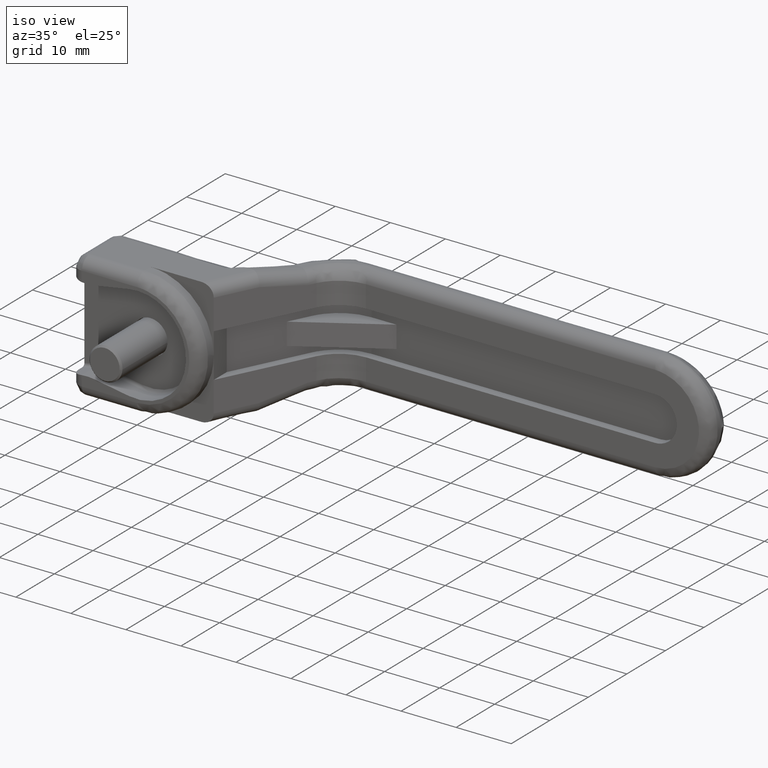
[diagram: clean part render]
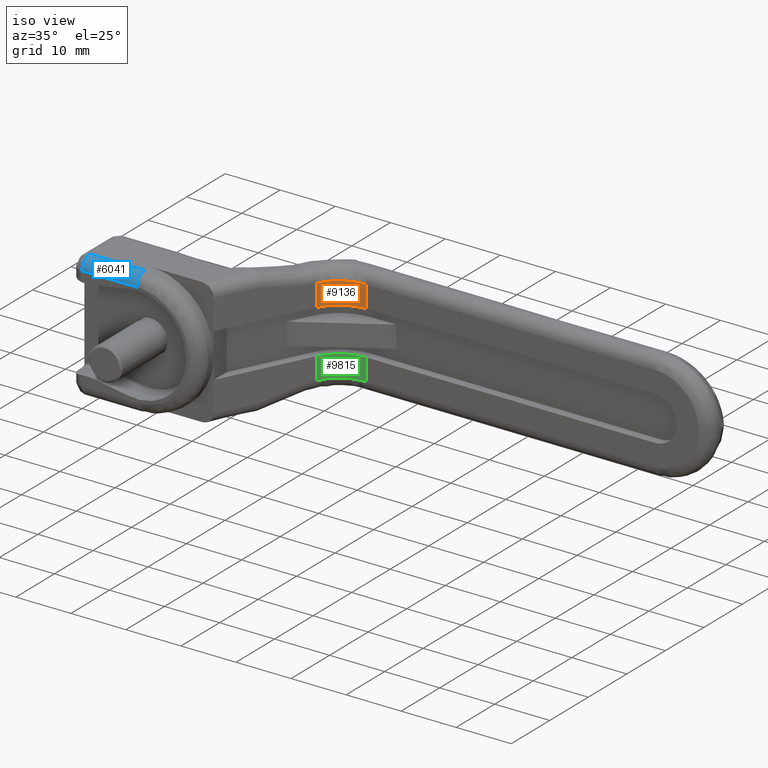
[diagram: same view with three faces highlighted in distinct colors, each labeled with its STEP entity id]
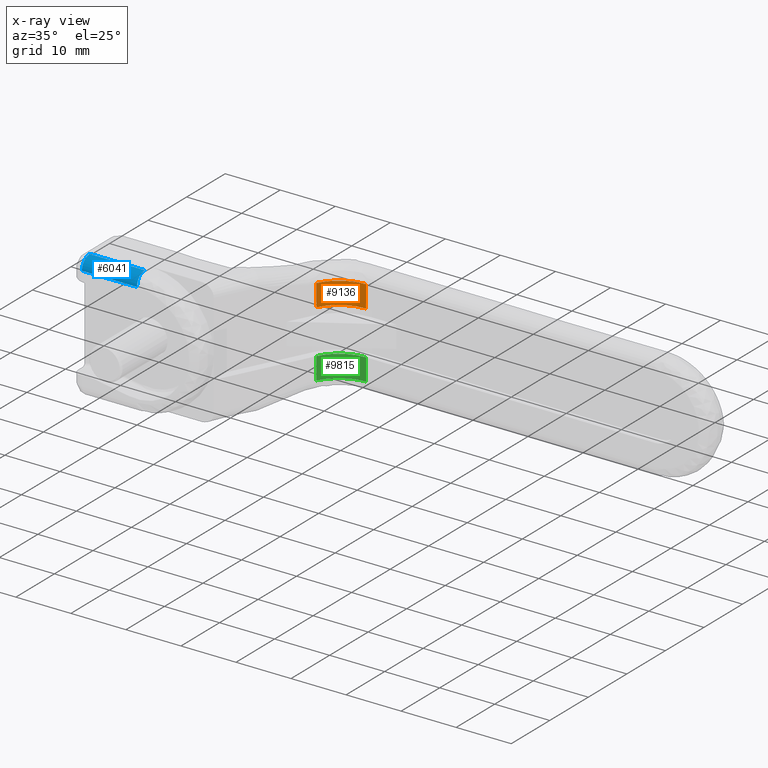
[diagram: x-ray of the same camera — body ghosted, the three highlighted faces saturated]
A machine part, iso view with three faces highlighted in distinct colors.
The next image is the same camera in x-ray (body ghosted, the three faces saturated) — at least one of them is partly hidden behind the body in this view.
Their STEP definitions:

[orange] entity #9136 — the highlighted face is a freeform B-spline surface patch.
#6401=CARTESIAN_POINT('',(19.105975049382799,-19.226759969643400,8.000000738483390));
#6402=VERTEX_POINT('',#6401);
#6542=CARTESIAN_POINT('',(23.000001089999699,-25.499951004805151,8.000000738483390));
#6543=VERTEX_POINT('',#6542);
#6573=CARTESIAN_POINT('',(23.000001089999699,-25.499951004805151,8.000000738483390));
#6574=CARTESIAN_POINT('',(23.000001089999706,-21.154764937374104,8.000000738483390));
#6575=CARTESIAN_POINT('',(19.105975049382810,-19.226759969643378,8.000000738483390));
#6583=(BOUNDED_CURVE()B_SPLINE_CURVE(2,(#6573,#6574,#6575),.UNSPECIFIED.,.F.,.U.)CURVE()GEOMETRIC_REPRESENTATION_ITEM()QUASI_UNIFORM_CURVE()RATIONAL_B_SPLINE_CURVE((1.0,0.849620669953997,1.0))REPRESENTATION_ITEM(''));
#6584=EDGE_CURVE('',#6543,#6402,#6583,.T.);
#8862=CARTESIAN_POINT('',(23.000001089999699,-25.499951214155899,4.000000453498800));
#8863=VERTEX_POINT('',#8862);
#8869=CARTESIAN_POINT('',(19.105974864426500,-19.226759878062751,4.000000453498800));
#8870=VERTEX_POINT('',#8869);
#8871=CARTESIAN_POINT('',(23.000001089999660,-25.499951214155899,4.000000453498800));
#8872=CARTESIAN_POINT('',(23.000001091843824,-21.154764938281826,4.000000453498800));
#8873=CARTESIAN_POINT('',(19.105974864426511,-19.226759878062730,4.000000453498800));
#8881=(BOUNDED_CURVE()B_SPLINE_CURVE(2,(#8871,#8872,#8873),.UNSPECIFIED.,.F.,.U.)CURVE()GEOMETRIC_REPRESENTATION_ITEM()QUASI_UNIFORM_CURVE()RATIONAL_B_SPLINE_CURVE((1.0,0.849620669842080,1.0))REPRESENTATION_ITEM(''));
#8882=EDGE_CURVE('',#8863,#8870,#8881,.T.);
#9108=CARTESIAN_POINT('',(22.996388396259199,-25.724816877740469,8.100000745608005));
#9109=CARTESIAN_POINT('',(22.996388396259199,-25.724816877740469,3.897500446196070));
#9110=CARTESIAN_POINT('',(23.149540840633261,-20.959692656114022,8.100000745608005));
#9111=CARTESIAN_POINT('',(23.149540840633261,-20.959692656114022,3.897500446196071));
#9112=CARTESIAN_POINT('',(18.771580031312730,-19.072015864181058,8.100000745608007));
#9113=CARTESIAN_POINT('',(18.771580031312730,-19.072015864181058,3.897500446196070));
#9121=(BOUNDED_SURFACE()B_SPLINE_SURFACE(1,2,((#9108,#9110,#9112),(#9109,#9111,#9113)),.UNSPECIFIED.,.F.,.F.,.U.)B_SPLINE_SURFACE_WITH_KNOTS((2,2),(3,3),(0.0,4.202500299411936),(0.0,8.629438486443375),.UNSPECIFIED.)GEOMETRIC_REPRESENTATION_ITEM()RATIONAL_B_SPLINE_SURFACE(((1.0,0.823218167194629,0.992050596791715),(1.0,0.823218167194629,0.992050596791715)))REPRESENTATION_ITEM('')SURFACE());
#9122=CARTESIAN_POINT('',(23.000001089999699,-25.499951004805151,8.000000738483390));
#9123=CARTESIAN_POINT('',(23.000001089999699,-25.499951214155899,4.000000453498800));
#9124=QUASI_UNIFORM_CURVE('',1,(#9122,#9123),.UNSPECIFIED.,.F.,.U.);
#9125=EDGE_CURVE('',#6543,#8863,#9124,.T.);
#9126=ORIENTED_EDGE('',*,*,#9125,.F.);
#9127=ORIENTED_EDGE('',*,*,#6584,.T.);
#9128=CARTESIAN_POINT('',(19.105974864426500,-19.226759878062751,4.000000453498800));
#9129=CARTESIAN_POINT('',(19.105975049382799,-19.226759969643400,8.000000738483390));
#9130=QUASI_UNIFORM_CURVE('',1,(#9128,#9129),.UNSPECIFIED.,.F.,.U.);
#9131=EDGE_CURVE('',#8870,#6402,#9130,.T.);
#9132=ORIENTED_EDGE('',*,*,#9131,.F.);
#9133=ORIENTED_EDGE('',*,*,#8882,.F.);
#9134=EDGE_LOOP('',(#9126,#9127,#9132,#9133));
#9135=FACE_OUTER_BOUND('',#9134,.T.);
#9136=ADVANCED_FACE('',(#9135),#9121,.F.);

[blue] entity #6041 — the highlighted face is a freeform B-spline surface patch.
#5981=CARTESIAN_POINT('',(0.001903556836285,10.250000000000000,9.412762034999028));
#5982=CARTESIAN_POINT('',(0.001903556836285,-0.256250000000000,9.412762034999028));
#5983=CARTESIAN_POINT('',(-0.095868981527806,10.250000000000000,11.652121330765164));
#5984=CARTESIAN_POINT('',(-0.095868981527806,-0.256250000000000,11.652121330765164));
#5985=CARTESIAN_POINT('',(2.140116177109670,10.250000000000004,11.495086636683560));
#5986=CARTESIAN_POINT('',(2.140116177109670,-0.256250000000000,11.495086636683560));
#5994=(BOUNDED_SURFACE()B_SPLINE_SURFACE(1,2,((#5981,#5983,#5985),(#5982,#5984,#5986)),.UNSPECIFIED.,.F.,.F.,.U.)B_SPLINE_SURFACE_WITH_KNOTS((2,2),(3,3),(0.0,10.506250000000000),(0.0,3.583485071282827),.UNSPECIFIED.)GEOMETRIC_REPRESENTATION_ITEM()RATIONAL_B_SPLINE_SURFACE(((1.0,0.664513899319860,0.996233559707205),(1.0,0.664513899319860,0.996233559707205)))REPRESENTATION_ITEM('')SURFACE());
#5995=CARTESIAN_POINT('',(0.0,0.0,9.500000809729690));
#5996=VERTEX_POINT('',#5995);
#5997=CARTESIAN_POINT('',(2.0,0.0,11.500000809729700));
#5998=VERTEX_POINT('',#5997);
#5999=CARTESIAN_POINT('',(0.0,0.0,9.500000809729690));
#6000=CARTESIAN_POINT('',(0.0,0.0,11.500000809729690));
#6001=CARTESIAN_POINT('',(2.0,0.0,11.500000809729690));
#6009=(BOUNDED_CURVE()B_SPLINE_CURVE(2,(#5999,#6000,#6001),.UNSPECIFIED.,.F.,.U.)CURVE()GEOMETRIC_REPRESENTATION_ITEM()QUASI_UNIFORM_CURVE()RATIONAL_B_SPLINE_CURVE((1.0,0.707106781186548,1.0))REPRESENTATION_ITEM(''));
#6010=EDGE_CURVE('',#5996,#5998,#6009,.T.);
#6011=ORIENTED_EDGE('',*,*,#6010,.T.);
#6012=CARTESIAN_POINT('',(2.0,10.0,11.500000809729700));
#6013=VERTEX_POINT('',#6012);
#6014=CARTESIAN_POINT('',(2.0,10.0,11.500000809729700));
#6015=CARTESIAN_POINT('',(2.0,0.0,11.500000809729700));
#6016=QUASI_UNIFORM_CURVE('',1,(#6014,#6015),.UNSPECIFIED.,.F.,.U.);
#6017=EDGE_CURVE('',#6013,#5998,#6016,.T.);
#6018=ORIENTED_EDGE('',*,*,#6017,.F.);
#6019=CARTESIAN_POINT('',(0.0,10.0,9.500000809729700));
#6020=VERTEX_POINT('',#6019);
#6021=CARTESIAN_POINT('',(2.0,10.0,11.500000809729700));
#6022=CARTESIAN_POINT('',(0.0,10.000000000000002,11.500000809729700));
#6023=CARTESIAN_POINT('',(0.0,10.0,9.500000809729700));
#6031=(BOUNDED_CURVE()B_SPLINE_CURVE(2,(#6021,#6022,#6023),.UNSPECIFIED.,.F.,.U.)CURVE()GEOMETRIC_REPRESENTATION_ITEM()QUASI_UNIFORM_CURVE()RATIONAL_B_SPLINE_CURVE((1.0,0.707106781186548,1.0))REPRESENTATION_ITEM(''));
#6032=EDGE_CURVE('',#6013,#6020,#6031,.T.);
#6033=ORIENTED_EDGE('',*,*,#6032,.T.);
#6034=CARTESIAN_POINT('',(0.0,0.0,9.500000809729690));
#6035=CARTESIAN_POINT('',(0.0,10.0,9.500000809729700));
#6036=QUASI_UNIFORM_CURVE('',1,(#6034,#6035),.UNSPECIFIED.,.F.,.U.);
#6037=EDGE_CURVE('',#5996,#6020,#6036,.T.);
#6038=ORIENTED_EDGE('',*,*,#6037,.F.);
#6039=EDGE_LOOP('',(#6011,#6018,#6033,#6038));
#6040=FACE_OUTER_BOUND('',#6039,.T.);
#6041=ADVANCED_FACE('',(#6040),#5994,.T.);

[green] entity #9815 — the highlighted face is a freeform B-spline surface patch.
#6769=CARTESIAN_POINT('',(23.000001089999699,-25.499951004805151,-8.000000738483390));
#6770=VERTEX_POINT('',#6769);
#6817=CARTESIAN_POINT('',(19.105975049382799,-19.226759969643400,-8.000000738483390));
#6818=VERTEX_POINT('',#6817);
#6848=CARTESIAN_POINT('',(19.105975049382810,-19.226759969643378,-8.000000738483390));
#6849=CARTESIAN_POINT('',(23.000001089999699,-21.154764937374107,-8.000000738483390));
#6850=CARTESIAN_POINT('',(23.000001089999699,-25.499951004805151,-8.000000738483390));
#6858=(BOUNDED_CURVE()B_SPLINE_CURVE(2,(#6848,#6849,#6850),.UNSPECIFIED.,.F.,.U.)CURVE()GEOMETRIC_REPRESENTATION_ITEM()QUASI_UNIFORM_CURVE()RATIONAL_B_SPLINE_CURVE((1.0,0.849620669953997,1.0))REPRESENTATION_ITEM(''));
#6859=EDGE_CURVE('',#6818,#6770,#6858,.T.);
#8782=CARTESIAN_POINT('',(23.000001089999699,-25.499951214155899,-4.000000453498800));
#8783=VERTEX_POINT('',#8782);
#8826=CARTESIAN_POINT('',(19.105975049382799,-19.226759969643400,-4.000000453498800));
#8827=VERTEX_POINT('',#8826);
#8833=CARTESIAN_POINT('',(23.000001089999660,-25.499951214155899,-4.000000453498800));
#8834=CARTESIAN_POINT('',(23.000001091843817,-21.154765081238207,-4.000000453498800));
#8835=CARTESIAN_POINT('',(19.105975049382799,-19.226759969643400,-4.000000453498800));
#8843=(BOUNDED_CURVE()B_SPLINE_CURVE(2,(#8833,#8834,#8835),.UNSPECIFIED.,.F.,.U.)CURVE()GEOMETRIC_REPRESENTATION_ITEM()QUASI_UNIFORM_CURVE()RATIONAL_B_SPLINE_CURVE((1.0,0.849620677616912,1.0))REPRESENTATION_ITEM(''));
#8844=EDGE_CURVE('',#8783,#8827,#8843,.T.);
#9224=CARTESIAN_POINT('',(23.000001089999699,-25.499951214155899,-4.000000453498800));
#9225=CARTESIAN_POINT('',(23.000001089999699,-25.499951004805151,-8.000000738483390));
#9226=QUASI_UNIFORM_CURVE('',1,(#9224,#9225),.UNSPECIFIED.,.F.,.U.);
#9227=EDGE_CURVE('',#8783,#6770,#9226,.T.);
#9791=CARTESIAN_POINT('',(22.996388389629260,-25.724817084021570,-3.900000446374186));
#9792=CARTESIAN_POINT('',(22.996388389629260,-25.724817084021570,-8.102500745786120));
#9793=CARTESIAN_POINT('',(23.149540962339465,-20.959693245205472,-3.900000446374186));
#9794=CARTESIAN_POINT('',(23.149540962339465,-20.959693245205472,-8.102500745786118));
#9795=CARTESIAN_POINT('',(18.771580695681031,-19.072016150641545,-3.900000446374186));
#9796=CARTESIAN_POINT('',(18.771580695681031,-19.072016150641545,-8.102500745786122));
#9804=(BOUNDED_SURFACE()B_SPLINE_SURFACE(1,2,((#9791,#9793,#9795),(#9792,#9794,#9796)),.UNSPECIFIED.,.F.,.F.,.U.)B_SPLINE_SURFACE_WITH_KNOTS((2,2),(3,3),(0.0,4.202500299411936),(0.0,8.629437920012155),.UNSPECIFIED.)GEOMETRIC_REPRESENTATION_ITEM()RATIONAL_B_SPLINE_SURFACE(((1.0,0.823218178748000,0.992050574724022),(1.0,0.823218178748000,0.992050574724022)))REPRESENTATION_ITEM('')SURFACE());
#9805=CARTESIAN_POINT('',(19.105975049382799,-19.226759969643400,-8.000000738483390));
#9806=CARTESIAN_POINT('',(19.105975049382799,-19.226759969643400,-4.000000453498800));
#9807=QUASI_UNIFORM_CURVE('',1,(#9805,#9806),.UNSPECIFIED.,.F.,.U.);
#9808=EDGE_CURVE('',#6818,#8827,#9807,.T.);
#9809=ORIENTED_EDGE('',*,*,#9808,.F.);
#9810=ORIENTED_EDGE('',*,*,#6859,.T.);
#9811=ORIENTED_EDGE('',*,*,#9227,.F.);
#9812=ORIENTED_EDGE('',*,*,#8844,.T.);
#9813=EDGE_LOOP('',(#9809,#9810,#9811,#9812));
#9814=FACE_OUTER_BOUND('',#9813,.T.);
#9815=ADVANCED_FACE('',(#9814),#9804,.F.);